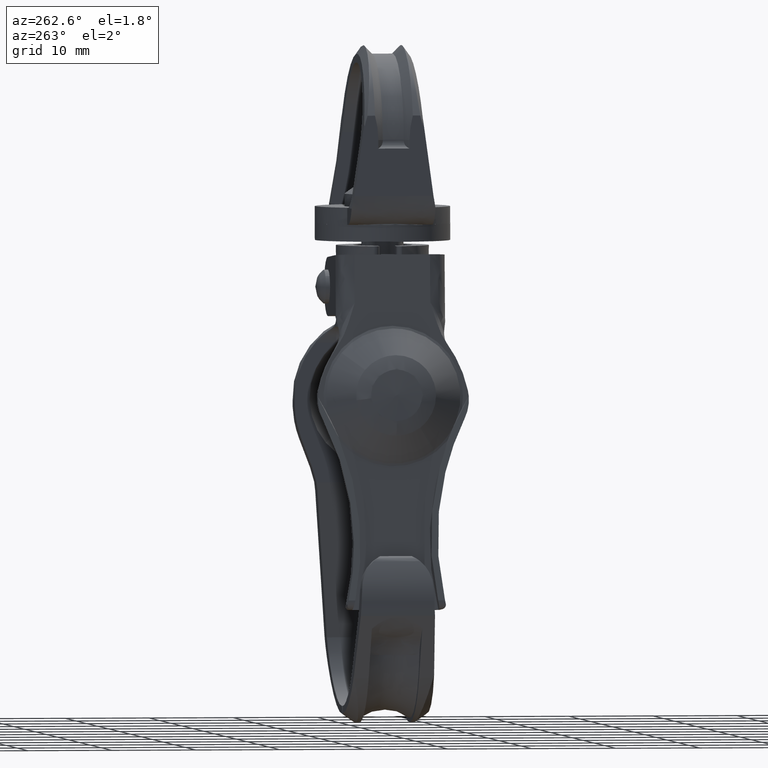
[diagram: clean part render]
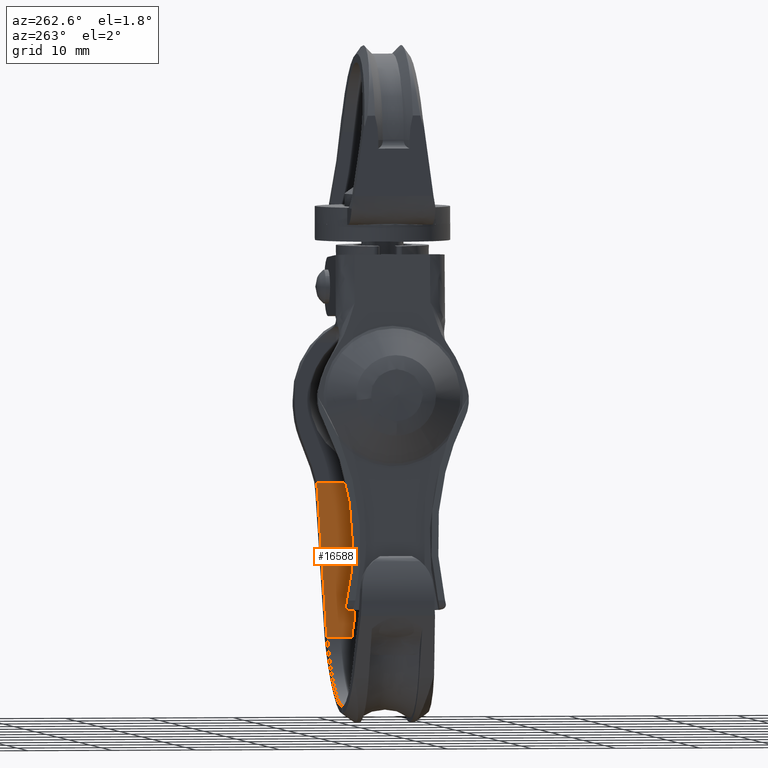
[diagram: same view with one face highlighted and labeled with its STEP entity id]
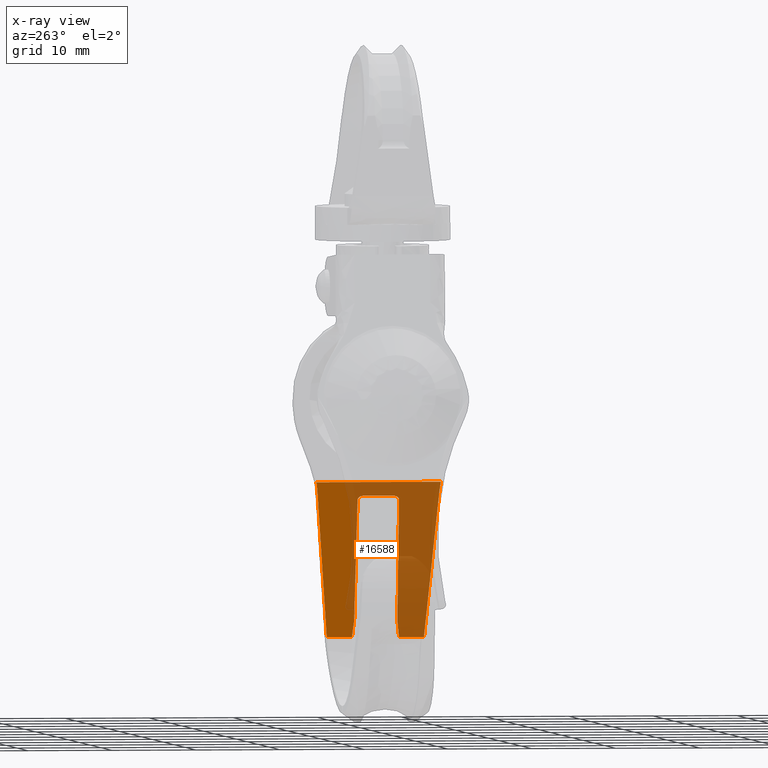
[diagram: x-ray of the same camera — body ghosted, the highlighted face saturated]
A machine part, auxiliary view. The second image highlights one B-rep face of the part: STEP entity #16588.
The next image is the same camera in x-ray: the body ghosted, the highlighted face saturated — about 60% of this face is hidden behind the body in this view.
In plain terms, the highlighted face is a freeform B-spline surface patch.
Its self-contained STEP definition (entity closure, byte-faithful):
#13678=CARTESIAN_POINT('',(4.733229419870370,2.471631649970440,-11.955861461861939));
#13679=VERTEX_POINT('',#13678);
#13680=CARTESIAN_POINT('',(4.634387496867970,1.671646199514525,-11.465716037933181));
#13681=VERTEX_POINT('',#13680);
#13682=CARTESIAN_POINT('',(4.733229419870370,2.471631649970430,-11.955861461861920));
#13683=CARTESIAN_POINT('',(4.724529047001606,2.471314427488031,-11.912717340232520));
#13684=CARTESIAN_POINT('',(4.716143952698546,2.462837231011048,-11.871136647779190));
#13685=CARTESIAN_POINT('',(4.699945297147558,2.431090538883418,-11.790809427800671));
#13686=CARTESIAN_POINT('',(4.692583278746602,2.408702453146526,-11.754302047930890));
#13687=CARTESIAN_POINT('',(4.679088102330168,2.353590882915984,-11.687381061726830));
#13688=CARTESIAN_POINT('',(4.673230760572135,2.321993468303688,-11.658335195642080));
#13689=CARTESIAN_POINT('',(4.662882974706015,2.252895345461319,-11.607021747501760));
#13690=CARTESIAN_POINT('',(4.658393174354093,2.215143542712679,-11.584757357757001));
#13691=CARTESIAN_POINT('',(4.650837008220325,2.137633818860800,-11.547287222207100));
#13692=CARTESIAN_POINT('',(4.647713256733355,2.097505468130900,-11.531796907466960));
#13693=CARTESIAN_POINT('',(4.642521595656099,2.015032478984007,-11.506052073267959));
#13694=CARTESIAN_POINT('',(4.640455250812569,1.972527108082887,-11.495805313203521));
#13695=CARTESIAN_POINT('',(4.635707206957054,1.844825742304468,-11.472260324420400));
#13696=CARTESIAN_POINT('',(4.634387496867999,1.758619301305262,-11.465716037933300));
#13697=CARTESIAN_POINT('',(4.634387496867970,1.671646199514525,-11.465716037933181));
#13698=B_SPLINE_CURVE_WITH_KNOTS('',3,(#13682,#13683,#13684,#13685,#13686,#13687,#13688,#13689,#13690,#13691,#13692,#13693,#13694,#13695,#13696,#13697),.UNSPECIFIED.,.F.,.U.,(4,2,2,2,2,2,2,4),(0.0,0.125000000000000,0.250000000000000,0.375000000000000,0.500000000000000,0.625000000000000,0.750000000000000,1.0),.UNSPECIFIED.);
#13699=EDGE_CURVE('',#13679,#13681,#13698,.T.);
#13701=CARTESIAN_POINT('',(4.733229419870340,-2.471627449995670,-11.955861461861840));
#13702=VERTEX_POINT('',#13701);
#13716=CARTESIAN_POINT('',(4.634387496867970,-1.671641999539755,-11.465716037933181));
#13717=VERTEX_POINT('',#13716);
#13718=CARTESIAN_POINT('',(4.634387496867960,-1.671641999539740,-11.465716037933200));
#13719=CARTESIAN_POINT('',(4.634387496867960,-1.758576114675380,-11.465716037933200));
#13720=CARTESIAN_POINT('',(4.635708475402604,-1.844545577762136,-11.472266614492071));
#13721=CARTESIAN_POINT('',(4.640411977474679,-1.971511991465431,-11.495590725831059));
#13722=CARTESIAN_POINT('',(4.642437362447050,-2.013500000197714,-11.505634370731380));
#13723=CARTESIAN_POINT('',(4.647646774215630,-2.096629912914919,-11.531467228512470));
#13724=CARTESIAN_POINT('',(4.650794033855064,-2.137131743581439,-11.547074117404611));
#13725=CARTESIAN_POINT('',(4.656466738410595,-2.195406411529265,-11.575204389405959));
#13726=CARTESIAN_POINT('',(4.658518764095191,-2.214441739361188,-11.585380142452200));
#13727=CARTESIAN_POINT('',(4.662991081592280,-2.251622011522759,-11.607557836784411));
#13728=CARTESIAN_POINT('',(4.665422401773344,-2.269827724617486,-11.619614466447770));
#13729=CARTESIAN_POINT('',(4.673201942020451,-2.321837615835360,-11.658192287847459));
#13730=CARTESIAN_POINT('',(4.679053968962938,-2.353401246234972,-11.687211798389550));
#13731=CARTESIAN_POINT('',(4.689137391218937,-2.394648663192953,-11.737214298605970));
#13732=CARTESIAN_POINT('',(4.692693382410998,-2.407231172860157,-11.754848039000491));
#13733=CARTESIAN_POINT('',(4.700079190643833,-2.429294448965772,-11.791473389837209));
#13734=CARTESIAN_POINT('',(4.703928945036781,-2.438863678682235,-11.810563867254430));
#13735=CARTESIAN_POINT('',(4.711982020341049,-2.454705627357492,-11.850498116700850));
#13736=CARTESIAN_POINT('',(4.716167448879572,-2.460896952753830,-11.871253162566241));
#13737=CARTESIAN_POINT('',(4.724597781499472,-2.469238734040137,-11.913058186490559));
#13738=CARTESIAN_POINT('',(4.728878577222796,-2.471468814828418,-11.934286146963490));
#13739=CARTESIAN_POINT('',(4.733229419870340,-2.471627449995670,-11.955861461861840));
#13740=B_SPLINE_CURVE_WITH_KNOTS('',3,(#13718,#13719,#13720,#13721,#13722,#13723,#13724,#13725,#13726,#13727,#13728,#13729,#13730,#13731,#13732,#13733,#13734,#13735,#13736,#13737,#13738,#13739),.UNSPECIFIED.,.F.,.U.,(4,2,2,2,2,2,2,2,2,2,4),(0.0,0.249999999999999,0.374999999999998,0.499999999999998,0.562499999999997,0.624999999999995,0.749999999999997,0.812499999999998,0.874999999999998,0.937499999999999,1.0),.UNSPECIFIED.);
#13741=EDGE_CURVE('',#13717,#13702,#13740,.T.);
#13771=CARTESIAN_POINT('',(7.599645186939339,-2.572014395081030,-26.170078755792350));
#13772=VERTEX_POINT('',#13771);
#13773=CARTESIAN_POINT('',(7.599645186939339,-2.572014395081030,-26.170078755792350));
#13774=CARTESIAN_POINT('',(4.733229419870340,-2.471627449995670,-11.955861461861840));
#13775=QUASI_UNIFORM_CURVE('',1,(#13773,#13774),.UNSPECIFIED.,.F.,.U.);
#13776=EDGE_CURVE('',#13772,#13702,#13775,.T.);
#13779=CARTESIAN_POINT('',(7.599645186939339,2.572018595055795,-26.170078755792350));
#13780=VERTEX_POINT('',#13779);
#13781=CARTESIAN_POINT('',(4.733229419870370,2.471631649970440,-11.955861461861939));
#13782=CARTESIAN_POINT('',(7.599645186939339,2.572018595055795,-26.170078755792350));
#13783=QUASI_UNIFORM_CURVE('',1,(#13781,#13782),.UNSPECIFIED.,.F.,.U.);
#13784=EDGE_CURVE('',#13679,#13780,#13783,.T.);
#13807=CARTESIAN_POINT('',(4.634387496867970,1.671646199514525,-11.465716037933181));
#13808=CARTESIAN_POINT('',(4.634387496867970,-1.671641999539755,-11.465716037933181));
#13809=QUASI_UNIFORM_CURVE('',1,(#13807,#13808),.UNSPECIFIED.,.F.,.U.);
#13810=EDGE_CURVE('',#13681,#13717,#13809,.T.);
#13868=CARTESIAN_POINT('',(7.998863627187670,-2.805890858834315,-28.149755857288401));
#13869=VERTEX_POINT('',#13868);
#13931=CARTESIAN_POINT('',(7.998863627187675,-2.805890858834245,-28.149755857288412));
#13932=CARTESIAN_POINT('',(7.932853842470257,-2.739089139812829,-27.822421129968522));
#13933=CARTESIAN_POINT('',(7.866681155702214,-2.680893804822748,-27.494278590616680));
#13934=CARTESIAN_POINT('',(7.733695456951496,-2.598332572108738,-26.834818214789632));
#13935=CARTESIAN_POINT('',(7.666876590302153,-2.574275986081667,-26.503471345713798));
#13936=CARTESIAN_POINT('',(7.599645186939339,-2.572014395081030,-26.170078755792350));
#13937=B_SPLINE_CURVE_WITH_KNOTS('',3,(#13931,#13932,#13933,#13934,#13935,#13936),.UNSPECIFIED.,.F.,.U.,(4,2,4),(0.0,0.500000000000000,1.0),.UNSPECIFIED.);
#13938=EDGE_CURVE('',#13869,#13772,#13937,.T.);
#13941=CARTESIAN_POINT('',(7.998863627187670,2.805895058809125,-28.149755857288401));
#13942=VERTEX_POINT('',#13941);
#13943=CARTESIAN_POINT('',(7.599645186939339,2.572018595055795,-26.170078755792350));
#13944=CARTESIAN_POINT('',(7.733788794336511,2.585151752073880,-26.835281063859700));
#13945=CARTESIAN_POINT('',(7.867677016170187,2.663605510223823,-27.499216945076260));
#13946=CARTESIAN_POINT('',(7.998863627187670,2.805895058809125,-28.149755857288401));
#13947=B_SPLINE_CURVE_WITH_KNOTS('',3,(#13943,#13944,#13945,#13946),.UNSPECIFIED.,.F.,.U.,(4,4),(7.664251E-010,2.036155063326015),.UNSPECIFIED.);
#13948=EDGE_CURVE('',#13780,#13942,#13947,.T.);
#15579=CARTESIAN_POINT('',(4.310455958605211,-7.400759927689290,-9.859377792755190));
#15580=VERTEX_POINT('',#15579);
#15588=CARTESIAN_POINT('',(4.506819468779851,-7.267370412037330,-10.833121251149400));
#15589=VERTEX_POINT('',#15588);
#15590=CARTESIAN_POINT('',(4.506819468779851,-7.267370412037330,-10.833121251149400));
#15591=CARTESIAN_POINT('',(4.440991873578397,-7.295827806421337,-10.506689980124600));
#15592=CARTESIAN_POINT('',(4.375435701276531,-7.340357946025672,-10.181604663206381));
#15593=CARTESIAN_POINT('',(4.310455958605211,-7.400759927689290,-9.859377792755190));
#15594=B_SPLINE_CURVE_WITH_KNOTS('',3,(#15590,#15591,#15592,#15593),.UNSPECIFIED.,.F.,.U.,(4,4),(3.311398E-010,1.002656018668344),.UNSPECIFIED.);
#15595=EDGE_CURVE('',#15589,#15580,#15594,.T.);
#15706=CARTESIAN_POINT('',(4.505535089902111,7.273253985553390,-10.826752167967260));
#15707=VERTEX_POINT('',#15706);
#15715=CARTESIAN_POINT('',(4.310455958605211,7.404282105766381,-9.859377792755190));
#15716=VERTEX_POINT('',#15715);
#15717=CARTESIAN_POINT('',(4.310455958605211,7.404282105766381,-9.859377792755190));
#15718=CARTESIAN_POINT('',(4.375018937461104,7.344878844032744,-10.179537980660980));
#15719=CARTESIAN_POINT('',(4.440144945448221,7.301137924293432,-10.502490163540649));
#15720=CARTESIAN_POINT('',(4.505535089902111,7.273253985553390,-10.826752167967260));
#15721=B_SPLINE_CURVE_WITH_KNOTS('',3,(#15717,#15718,#15719,#15720),.UNSPECIFIED.,.F.,.U.,(4,4),(3.199767E-010,0.995895355725745),.UNSPECIFIED.);
#15722=EDGE_CURVE('',#15716,#15707,#15721,.T.);
#16150=CARTESIAN_POINT('',(4.310455958605211,-7.400759927689290,-9.859377792755190));
#16151=CARTESIAN_POINT('',(4.310455958605211,7.404282105766381,-9.859377792755190));
#16152=QUASI_UNIFORM_CURVE('',1,(#16150,#16151),.UNSPECIFIED.,.F.,.U.);
#16153=EDGE_CURVE('',#15580,#15716,#16152,.T.);
#16486=CARTESIAN_POINT('',(7.998863627187670,5.783337401372160,-28.149755857288401));
#16487=VERTEX_POINT('',#16486);
#16488=CARTESIAN_POINT('',(7.998863627187670,2.805895058809125,-28.149755857288401));
#16489=CARTESIAN_POINT('',(7.998863627187670,5.783337401372160,-28.149755857288401));
#16490=QUASI_UNIFORM_CURVE('',1,(#16488,#16489),.UNSPECIFIED.,.F.,.U.);
#16491=EDGE_CURVE('',#13942,#16487,#16490,.T.);
#16531=CARTESIAN_POINT('',(7.998863627187670,-5.781498702349450,-28.149755857288401));
#16532=VERTEX_POINT('',#16531);
#16533=CARTESIAN_POINT('',(7.998863627187670,-5.781498702349450,-28.149755857288401));
#16534=CARTESIAN_POINT('',(7.998863627187670,-2.805890858834315,-28.149755857288401));
#16535=QUASI_UNIFORM_CURVE('',1,(#16533,#16534),.UNSPECIFIED.,.F.,.U.);
#16536=EDGE_CURVE('',#16532,#13869,#16535,.T.);
#16559=CARTESIAN_POINT('',(4.126220015885948,-8.140271609586211,-8.945773509228133));
#16560=CARTESIAN_POINT('',(8.183099405022263,-8.140271609586211,-29.063359323171841));
#16561=CARTESIAN_POINT('',(4.126220015885948,8.143794317132864,-8.945773509228133));
#16562=CARTESIAN_POINT('',(8.183099405022263,8.143794317132864,-29.063359323171841));
#16563=B_SPLINE_SURFACE_WITH_KNOTS('',1,1,((#16559,#16561),(#16560,#16562)),.UNSPECIFIED.,.F.,.F.,.U.,(2,2),(2,2),(0.0,20.522561471692271),(0.0,16.284065926719069),.UNSPECIFIED.);
#16564=ORIENTED_EDGE('',*,*,#13776,.F.);
#16565=ORIENTED_EDGE('',*,*,#13938,.F.);
#16566=ORIENTED_EDGE('',*,*,#16536,.F.);
#16567=CARTESIAN_POINT('',(4.506819468779851,-7.267370412037330,-10.833121251149400));
#16568=CARTESIAN_POINT('',(7.998863627187670,-5.781498702349450,-28.149755857288401));
#16569=QUASI_UNIFORM_CURVE('',1,(#16567,#16568),.UNSPECIFIED.,.F.,.U.);
#16570=EDGE_CURVE('',#15589,#16532,#16569,.T.);
#16571=ORIENTED_EDGE('',*,*,#16570,.F.);
#16572=ORIENTED_EDGE('',*,*,#15595,.T.);
#16573=ORIENTED_EDGE('',*,*,#16153,.T.);
#16574=ORIENTED_EDGE('',*,*,#15722,.T.);
#16575=CARTESIAN_POINT('',(4.505535089902111,7.273253985553390,-10.826752167967260));
#16576=CARTESIAN_POINT('',(7.998863627187670,5.783337401372160,-28.149755857288401));
#16577=QUASI_UNIFORM_CURVE('',1,(#16575,#16576),.UNSPECIFIED.,.F.,.U.);
#16578=EDGE_CURVE('',#15707,#16487,#16577,.T.);
#16579=ORIENTED_EDGE('',*,*,#16578,.T.);
#16580=ORIENTED_EDGE('',*,*,#16491,.F.);
#16581=ORIENTED_EDGE('',*,*,#13948,.F.);
#16582=ORIENTED_EDGE('',*,*,#13784,.F.);
#16583=ORIENTED_EDGE('',*,*,#13699,.T.);
#16584=ORIENTED_EDGE('',*,*,#13810,.T.);
#16585=ORIENTED_EDGE('',*,*,#13741,.T.);
#16586=EDGE_LOOP('',(#16564,#16565,#16566,#16571,#16572,#16573,#16574,#16579,#16580,#16581,#16582,#16583,#16584,#16585));
#16587=FACE_OUTER_BOUND('',#16586,.T.);
#16588=ADVANCED_FACE('',(#16587),#16563,.F.);